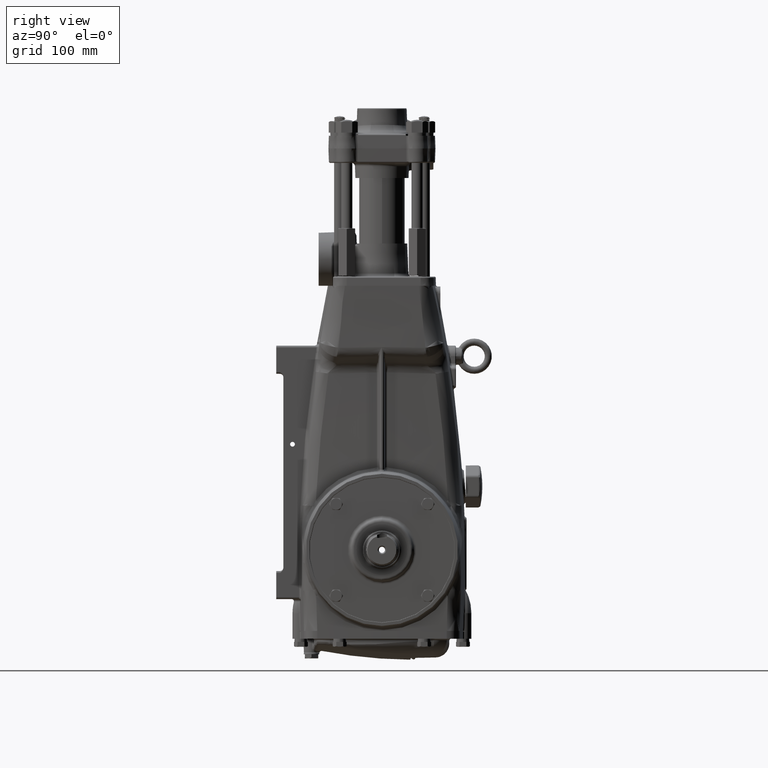
[diagram: clean part render]
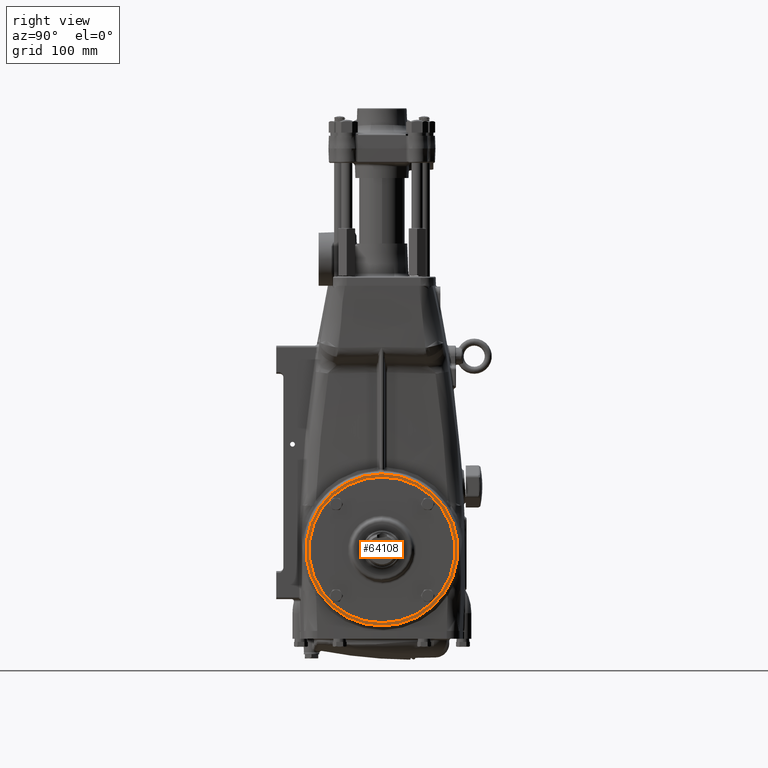
[diagram: same view with one face highlighted and labeled with its STEP entity id]
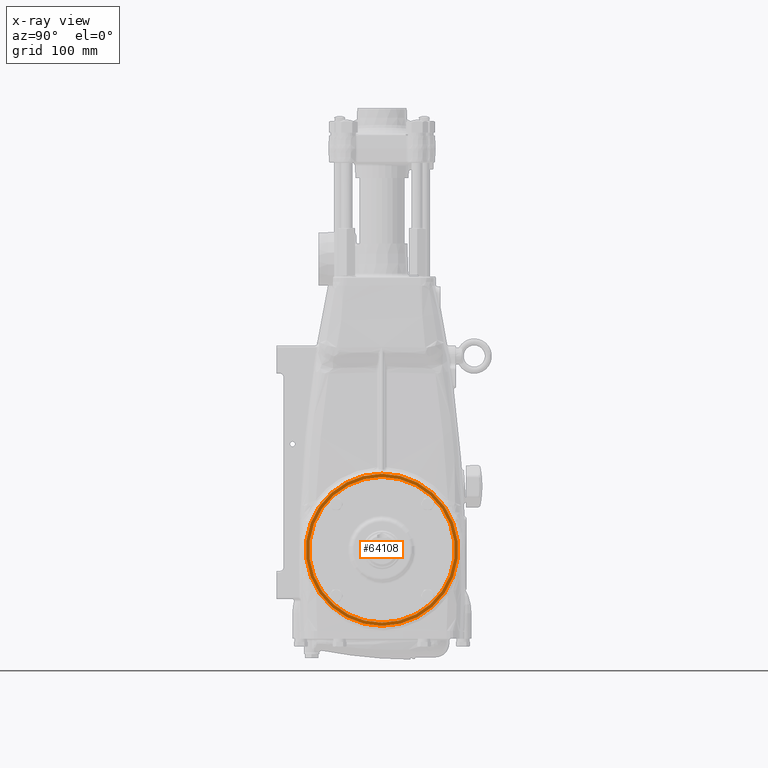
[diagram: x-ray of the same camera — body ghosted, the highlighted face saturated]
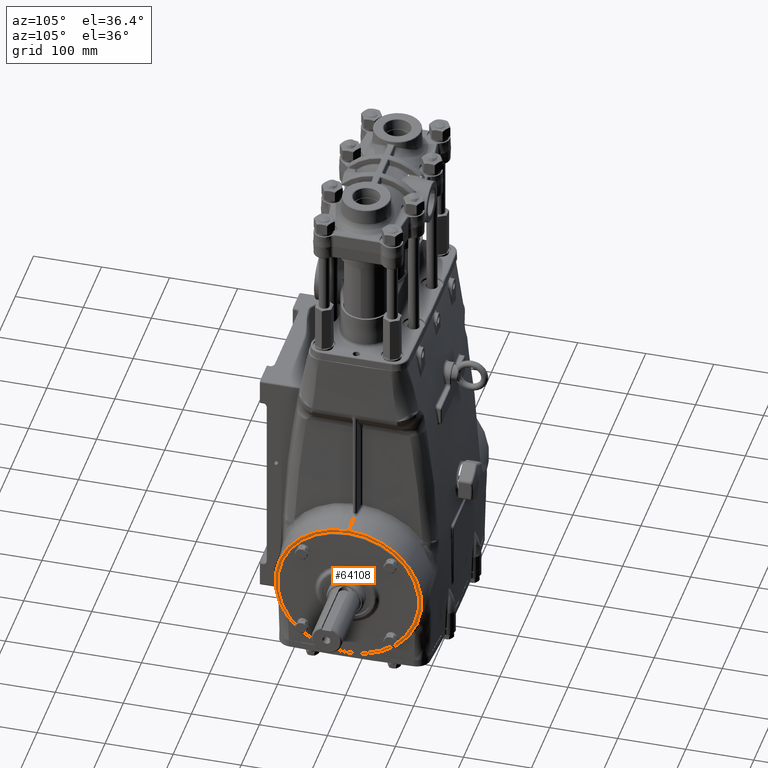
[diagram: same view with one face highlighted and labeled with its STEP entity id]
A machine part, right view. The second image highlights one B-rep face of the part: STEP entity #64108.
The next image is the same camera in x-ray: the body ghosted, the highlighted face saturated — about 0% of this face is hidden behind the body in this view.
A second angle (auxiliary view) of the same face is appended — the face is thin or edge-on in the first view.
In plain terms, the highlighted planar face has unit normal (1, 0, -0).
Its self-contained STEP definition (entity closure, byte-faithful):
#299 = FACE_BOUND ( 'NONE', #30451, .T. ) ;
#2063 = DIRECTION ( 'NONE',  ( -1.000000000000000000, -0.000000000000000000, -0.000000000000000000 ) ) ;
#3199 = CARTESIAN_POINT ( 'NONE',  ( 7.283464566929135131, 0.000000000000000000, 0.000000000000000000 ) ) ;
#6667 = AXIS2_PLACEMENT_3D ( 'NONE', #45799, #2063, #80437 ) ;
#9985 = CARTESIAN_POINT ( 'NONE',  ( 7.283464566929135131, -5.318640310989227753E-16, 4.251968503937008315 ) ) ;
#10690 = VERTEX_POINT ( 'NONE', #23971 ) ;
#11702 = EDGE_CURVE ( 'NONE', #58676, #60478, #111818, .T. ) ;
#15877 = ORIENTED_EDGE ( 'NONE', *, *, #11702, .T. ) ;
#17007 = DIRECTION ( 'NONE',  ( 1.000000000000000000, 0.000000000000000000, -0.000000000000000000 ) ) ;
#23971 = CARTESIAN_POINT ( 'NONE',  ( 7.283464566929135131, 0.000000000000000000, -4.251968503937008315 ) ) ;
#25902 = AXIS2_PLACEMENT_3D ( 'NONE', #40521, #42201, #77372 ) ;
#27236 = CARTESIAN_POINT ( 'NONE',  ( 7.283464566929135131, 0.000000000000000000, -4.074803149606307073 ) ) ;
#28186 = EDGE_CURVE ( 'NONE', #10690, #47604, #46077, .T. ) ;
#30451 = EDGE_LOOP ( 'NONE', ( #15877, #61528 ) ) ;
#33451 = DIRECTION ( 'NONE',  ( 0.000000000000000000, 0.000000000000000000, -1.000000000000000000 ) ) ;
#34022 = CARTESIAN_POINT ( 'NONE',  ( 7.283464566929135131, 0.000000000000000000, 0.000000000000000000 ) ) ;
#40521 = CARTESIAN_POINT ( 'NONE',  ( 7.283464566929135131, 0.000000000000000000, 0.000000000000000000 ) ) ;
#42201 = DIRECTION ( 'NONE',  ( 1.000000000000000000, -0.000000000000000000, -0.000000000000000000 ) ) ;
#42343 = FACE_OUTER_BOUND ( 'NONE', #92036, .T. ) ;
#44099 = CARTESIAN_POINT ( 'NONE',  ( 7.283464566929135131, 4.990194634320917858E-16, 4.074803149606307073 ) ) ;
#45799 = CARTESIAN_POINT ( 'NONE',  ( 7.283464566929135131, 0.000000000000000000, 0.000000000000000000 ) ) ;
#46077 = CIRCLE ( 'NONE', #25902, 4.251968503937008315 ) ;
#47604 = VERTEX_POINT ( 'NONE', #9985 ) ;
#51310 = DIRECTION ( 'NONE',  ( 1.000000000000000000, -0.000000000000000000, -0.000000000000000000 ) ) ;
#51836 = ORIENTED_EDGE ( 'NONE', *, *, #97066, .T. ) ;
#55269 = CIRCLE ( 'NONE', #71855, 4.251968503937008315 ) ;
#58676 = VERTEX_POINT ( 'NONE', #27236 ) ;
#59054 = PLANE ( 'NONE',  #87224 ) ;
#60183 = ORIENTED_EDGE ( 'NONE', *, *, #28186, .T. ) ;
#60192 = CARTESIAN_POINT ( 'NONE',  ( 7.283464566929135131, 0.000000000000000000, 0.000000000000000000 ) ) ;
#60478 = VERTEX_POINT ( 'NONE', #44099 ) ;
#61528 = ORIENTED_EDGE ( 'NONE', *, *, #110364, .T. ) ;
#64108 = ADVANCED_FACE ( 'NONE', ( #299, #42343 ), #59054, .T. ) ;
#71062 = CIRCLE ( 'NONE', #6667, 4.074803149606307073 ) ;
#71855 = AXIS2_PLACEMENT_3D ( 'NONE', #34022, #51310, #33451 ) ;
#77372 = DIRECTION ( 'NONE',  ( 0.000000000000000000, 0.000000000000000000, -1.000000000000000000 ) ) ;
#80437 = DIRECTION ( 'NONE',  ( 0.000000000000000000, 0.000000000000000000, -1.000000000000000000 ) ) ;
#82683 = DIRECTION ( 'NONE',  ( -1.000000000000000000, -0.000000000000000000, -0.000000000000000000 ) ) ;
#87224 = AXIS2_PLACEMENT_3D ( 'NONE', #60192, #17007, #87321 ) ;
#87321 = DIRECTION ( 'NONE',  ( 0.000000000000000000, 0.000000000000000000, 1.000000000000000000 ) ) ;
#89783 = AXIS2_PLACEMENT_3D ( 'NONE', #3199, #82683, #108079 ) ;
#92036 = EDGE_LOOP ( 'NONE', ( #60183, #51836 ) ) ;
#97066 = EDGE_CURVE ( 'NONE', #47604, #10690, #55269, .T. ) ;
#108079 = DIRECTION ( 'NONE',  ( 0.000000000000000000, 0.000000000000000000, -1.000000000000000000 ) ) ;
#110364 = EDGE_CURVE ( 'NONE', #60478, #58676, #71062, .T. ) ;
#111818 = CIRCLE ( 'NONE', #89783, 4.074803149606307073 ) ;